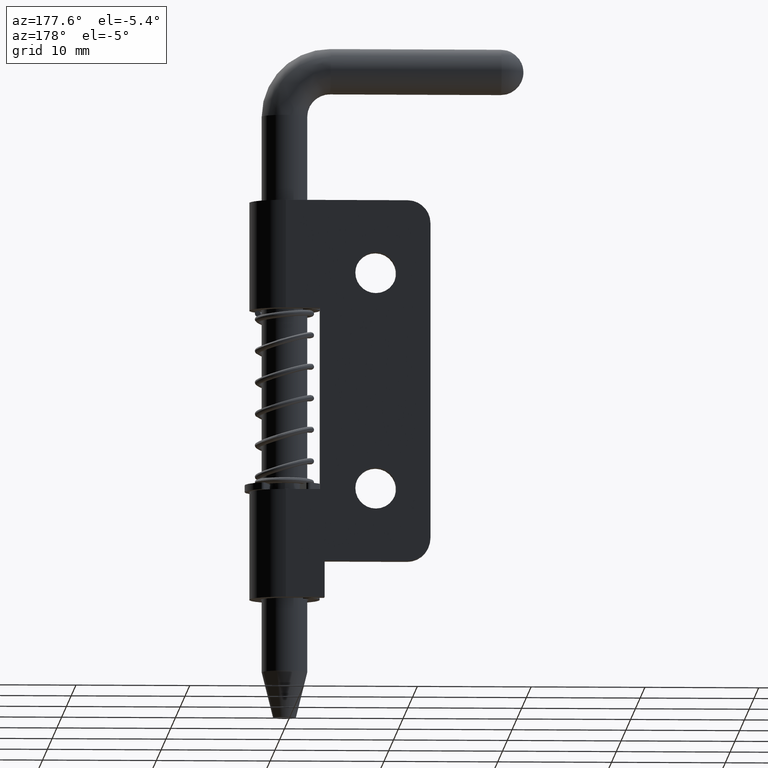
[diagram: clean part render]
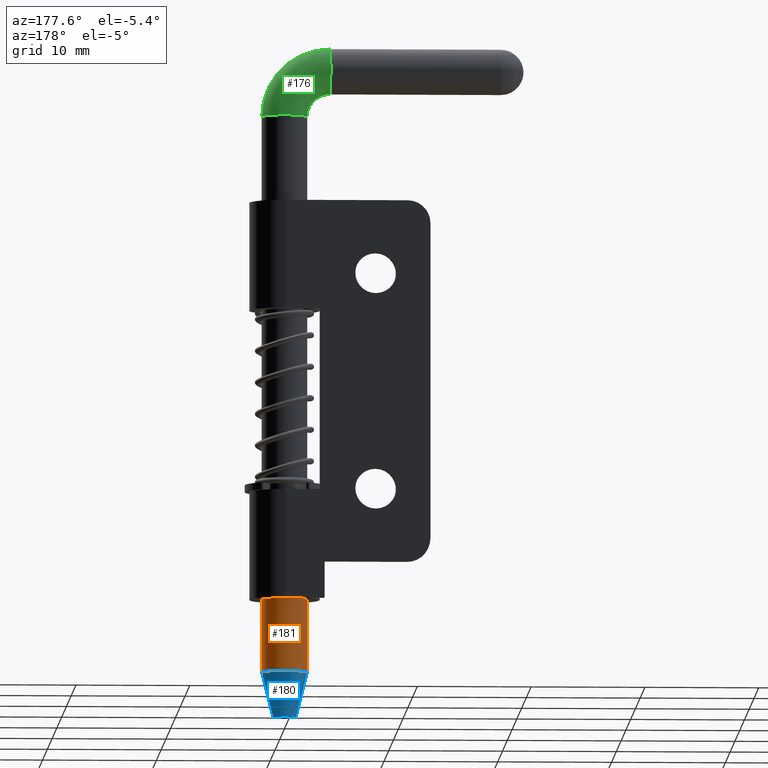
[diagram: same view with three faces highlighted in distinct colors, each labeled with its STEP entity id]
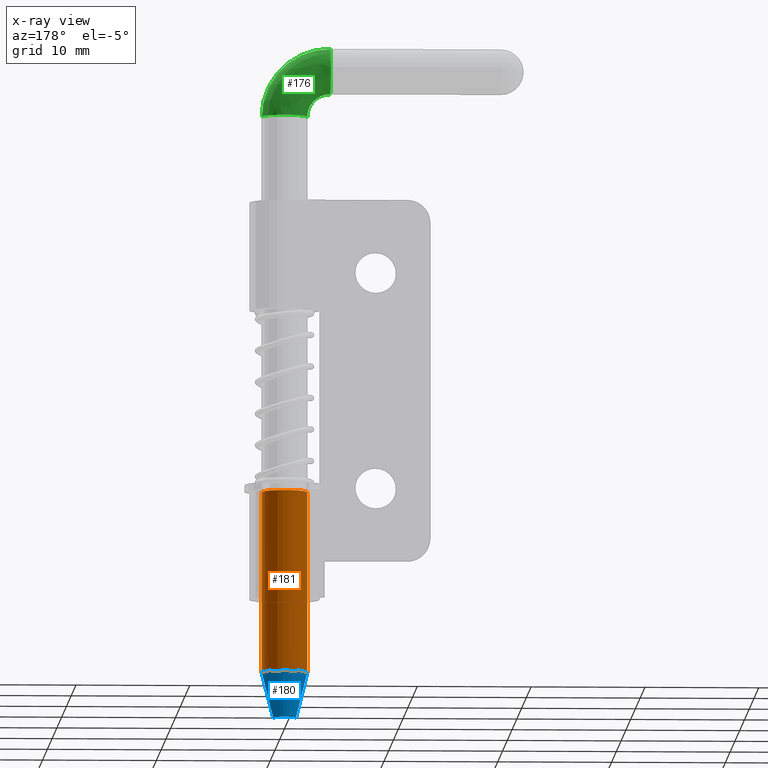
[diagram: x-ray of the same camera — body ghosted, the three highlighted faces saturated]
A machine part, auxiliary view with three faces highlighted in distinct colors.
The next image is the same camera in x-ray (body ghosted, the three faces saturated) — at least one of them is partly hidden behind the body in this view.
Their STEP definitions:

[orange] entity #181 — the highlighted cylindrical surface (edge-blend (fillet) strip) has radius 2 mm, axis along (0, 0, 1).
#181=ADVANCED_FACE('',(#559),#558,.T.);
#558=CYLINDRICAL_SURFACE('',#1350,2.00000000000E+00);
#559=FACE_OUTER_BOUND('',#1351,.T.);
#1347=CARTESIAN_POINT('',(0.00000000000E+00,0.00000000000E+00,0.00000000000E+00));
#1348=DIRECTION('',(0.00000000000E+00,-0.00000000000E+00,1.00000000000E+00));
#1349=DIRECTION('',(1.00000000000E+00,0.00000000000E+00,0.00000000000E+00));
#1350=AXIS2_PLACEMENT_3D('',#1347,#1348,#1349);
#1351=EDGE_LOOP('',(#3275,#3276,#3277,#3278,#3279,#3280));
#3275=ORIENTED_EDGE('',*,*,#3584,.T.);
#3276=ORIENTED_EDGE('',*,*,#3617,.T.);
#3277=ORIENTED_EDGE('',*,*,#3594,.T.);
#3278=ORIENTED_EDGE('',*,*,#3638,.F.);
#3279=ORIENTED_EDGE('',*,*,#3637,.F.);
#3280=ORIENTED_EDGE('',*,*,#3639,.T.);
#3584=EDGE_CURVE('',#3769,#4038,#4039,.T.);
#3594=EDGE_CURVE('',#4106,#3859,#4107,.T.);
#3617=EDGE_CURVE('',#4038,#4106,#4251,.T.);
#3637=EDGE_CURVE('',#4360,#4359,#4379,.T.);
#3638=EDGE_CURVE('',#4359,#3859,#4385,.T.);
#3639=EDGE_CURVE('',#4360,#3769,#4391,.T.);
#3769=VERTEX_POINT('',#5245);
#3859=VERTEX_POINT('',#5300);
#4038=VERTEX_POINT('',#5421);
#4039=CIRCLE('',#5425,2.00000000000E+00);
#4106=VERTEX_POINT('',#5466);
#4107=CIRCLE('',#5470,2.00000000000E+00);
#4251=CIRCLE('',#5550,2.00000000000E+00);
#4359=VERTEX_POINT('',#5609);
#4360=VERTEX_POINT('',#5610);
#4379=CIRCLE('',#5622,2.00000000000E+00);
#4385=(BOUNDED_CURVE() B_SPLINE_CURVE(1,(#5623,#5624),.UNSPECIFIED.,.F.,.F.) B_SPLINE_CURVE_WITH_KNOTS((2,2),(8.33333328360E-02,9.16666665505E-01),.UNSPECIFIED.) CURVE() GEOMETRIC_REPRESENTATION_ITEM() RATIONAL_B_SPLINE_CURVE((1.00000000000E+00,1.00000000000E+00)) REPRESENTATION_ITEM('') );
#4391=(BOUNDED_CURVE() B_SPLINE_CURVE(1,(#5625,#5626),.UNSPECIFIED.,.F.,.F.) B_SPLINE_CURVE_WITH_KNOTS((2,2),(8.33333333333E-02,9.16666666667E-01),.UNSPECIFIED.) CURVE() GEOMETRIC_REPRESENTATION_ITEM() RATIONAL_B_SPLINE_CURVE((7.50000000000E-01,7.50000000000E-01)) REPRESENTATION_ITEM('') );
#5245=CARTESIAN_POINT('',(-2.00000000000E+00,0.00000000000E+00,-3.31000000000E+01));
#5300=CARTESIAN_POINT('',(2.00000000000E+00,0.00000000000E+00,-3.31000000000E+01));
#5421=CARTESIAN_POINT('',(-1.46446214531E+00,1.36211255958E+00,-3.31000000000E+01));
#5422=CARTESIAN_POINT('',(0.00000000000E+00,0.00000000000E+00,-3.31000000000E+01));
#5423=DIRECTION('',(-0.00000000000E+00,0.00000000000E+00,-1.00000000000E+00));
#5424=DIRECTION('',(1.00000000000E+00,-0.00000000000E+00,-0.00000000000E+00));
#5425=AXIS2_PLACEMENT_3D('',#5422,#5423,#5424);
#5466=CARTESIAN_POINT('',(1.46446214531E+00,1.36211255958E+00,-3.31000000000E+01));
#5467=CARTESIAN_POINT('',(0.00000000000E+00,0.00000000000E+00,-3.31000000000E+01));
#5468=DIRECTION('',(-0.00000000000E+00,0.00000000000E+00,-1.00000000000E+00));
#5469=DIRECTION('',(1.00000000000E+00,-0.00000000000E+00,-0.00000000000E+00));
#5470=AXIS2_PLACEMENT_3D('',#5467,#5468,#5469);
#5547=CARTESIAN_POINT('',(0.00000000000E+00,0.00000000000E+00,-3.31000000000E+01));
#5548=DIRECTION('',(-0.00000000000E+00,0.00000000000E+00,-1.00000000000E+00));
#5549=DIRECTION('',(1.00000000000E+00,-0.00000000000E+00,-0.00000000000E+00));
#5550=AXIS2_PLACEMENT_3D('',#5547,#5548,#5549);
#5609=CARTESIAN_POINT('',(2.00000000000E+00,2.22044604925E-16,-4.89999999999E+01));
#5610=CARTESIAN_POINT('',(-2.00000000000E+00,0.00000000000E+00,-4.89999999999E+01));
#5619=CARTESIAN_POINT('',(0.00000000000E+00,0.00000000000E+00,-4.89999999999E+01));
#5620=DIRECTION('',(-0.00000000000E+00,0.00000000000E+00,-1.00000000000E+00));
#5621=DIRECTION('',(-1.00000000000E+00,-1.22460635382E-16,0.00000000000E+00));
#5622=AXIS2_PLACEMENT_3D('',#5619,#5620,#5621);
#5623=CARTESIAN_POINT('',(2.00000000000E+00,0.00000000000E+00,-4.90000000094E+01));
#5624=CARTESIAN_POINT('',(2.00000000000E+00,0.00000000000E+00,-3.31000000222E+01));
#5625=CARTESIAN_POINT('',(-2.00000000000E+00,-7.40148683083E-17,-4.89999999999E+01));
#5626=CARTESIAN_POINT('',(-2.00000000000E+00,-7.40148683083E-17,-3.31000000000E+01));

[blue] entity #180 — the highlighted face is a freeform B-spline surface patch.
#180=ADVANCED_FACE('',(#549),#548,.T.);
#548=( BOUNDED_SURFACE() B_SPLINE_SURFACE( 2,1,((#1336,#1337),(#1338,#1339),(#1340,#1341),(#1342,#1343),(#1344,#1345)), .UNSPECIFIED.,.F.,.F.,.F.) B_SPLINE_SURFACE_WITH_KNOTS((3,2,3),(2,2),(0.00000000000E+00,5.00000000000E-01,1.00000000000E+00),(0.00000000000E+00,1.00000000000E+00), .UNSPECIFIED. ) GEOMETRIC_REPRESENTATION_ITEM() RATIONAL_B_SPLINE_SURFACE(((1.00000000000E+00,1.00000000000E+00),(7.07106781187E-01,7.07106781187E-01),(1.00000000000E+00,1.00000000000E+00),(7.07106781187E-01,7.07106781187E-01),(1.00000000000E+00,1.00000000000E+00))) REPRESENTATION_ITEM('') SURFACE() );
#549=FACE_OUTER_BOUND('',#1346,.T.);
#1336=CARTESIAN_POINT('',(1.00000000000E+00,5.66553889765E-16,-5.29999999999E+01));
#1337=CARTESIAN_POINT('',(2.00000000000E+00,1.13310777953E-15,-4.89999999999E+01));
#1338=CARTESIAN_POINT('',(1.00000000000E+00,1.00000000000E+00,-5.29999999999E+01));
#1339=CARTESIAN_POINT('',(2.00000000000E+00,2.00000000000E+00,-4.89999999999E+01));
#1340=CARTESIAN_POINT('',(-5.05321549807E-16,1.00000000000E+00,-5.29999999999E+01));
#1341=CARTESIAN_POINT('',(-1.01064309961E-15,2.00000000000E+00,-4.89999999999E+01));
#1342=CARTESIAN_POINT('',(-1.00000000000E+00,1.00000000000E+00,-5.29999999999E+01));
#1343=CARTESIAN_POINT('',(-2.00000000000E+00,2.00000000000E+00,-4.89999999999E+01));
#1344=CARTESIAN_POINT('',(-1.00000000000E+00,-4.44089209850E-16,-5.29999999999E+01));
#1345=CARTESIAN_POINT('',(-2.00000000000E+00,-8.88178419700E-16,-4.89999999999E+01));
#1346=EDGE_LOOP('',(#3271,#3272,#3273,#3274));
#3271=ORIENTED_EDGE('',*,*,#3566,.F.);
#3272=ORIENTED_EDGE('',*,*,#3635,.T.);
#3273=ORIENTED_EDGE('',*,*,#3637,.T.);
#3274=ORIENTED_EDGE('',*,*,#3636,.F.);
#3566=EDGE_CURVE('',#3914,#3915,#3916,.T.);
#3635=EDGE_CURVE('',#3914,#4360,#4367,.T.);
#3636=EDGE_CURVE('',#3915,#4359,#4373,.T.);
#3637=EDGE_CURVE('',#4360,#4359,#4379,.T.);
#3914=VERTEX_POINT('',#5338);
#3915=VERTEX_POINT('',#5339);
#3916=CIRCLE('',#5343,1.00000000000E+00);
#4359=VERTEX_POINT('',#5609);
#4360=VERTEX_POINT('',#5610);
#4367=(BOUNDED_CURVE() B_SPLINE_CURVE(1,(#5615,#5616),.UNSPECIFIED.,.F.,.F.) B_SPLINE_CURVE_WITH_KNOTS((2,2),(0.00000000000E+00,1.00000000000E+00),.UNSPECIFIED.) CURVE() GEOMETRIC_REPRESENTATION_ITEM() RATIONAL_B_SPLINE_CURVE((1.00000000000E+00,1.00000000000E+00)) REPRESENTATION_ITEM('') );
#4373=(BOUNDED_CURVE() B_SPLINE_CURVE(1,(#5617,#5618),.UNSPECIFIED.,.F.,.F.) B_SPLINE_CURVE_WITH_KNOTS((2,2),(0.00000000000E+00,1.00000000000E+00),.UNSPECIFIED.) CURVE() GEOMETRIC_REPRESENTATION_ITEM() RATIONAL_B_SPLINE_CURVE((7.50000000000E-01,7.50000000000E-01)) REPRESENTATION_ITEM('') );
#4379=CIRCLE('',#5622,2.00000000000E+00);
#5338=CARTESIAN_POINT('',(-1.00000000000E+00,0.00000000000E+00,-5.29999999999E+01));
#5339=CARTESIAN_POINT('',(1.00000000000E+00,1.11022302463E-16,-5.29999999999E+01));
#5340=CARTESIAN_POINT('',(0.00000000000E+00,0.00000000000E+00,-5.29999999999E+01));
#5341=DIRECTION('',(-0.00000000000E+00,0.00000000000E+00,-1.00000000000E+00));
#5342=DIRECTION('',(-1.00000000000E+00,-1.22460635382E-16,0.00000000000E+00));
#5343=AXIS2_PLACEMENT_3D('',#5340,#5341,#5342);
#5609=CARTESIAN_POINT('',(2.00000000000E+00,2.22044604925E-16,-4.89999999999E+01));
#5610=CARTESIAN_POINT('',(-2.00000000000E+00,0.00000000000E+00,-4.89999999999E+01));
#5615=CARTESIAN_POINT('',(-1.00000000000E+00,-2.44921270765E-16,-5.29999999999E+01));
#5616=CARTESIAN_POINT('',(-2.00000000000E+00,-4.89842541529E-16,-4.89999999999E+01));
#5617=CARTESIAN_POINT('',(1.00000000000E+00,2.59052039079E-16,-5.29999999999E+01));
#5618=CARTESIAN_POINT('',(2.00000000000E+00,5.18104078158E-16,-4.89999999999E+01));
#5619=CARTESIAN_POINT('',(0.00000000000E+00,0.00000000000E+00,-4.89999999999E+01));
#5620=DIRECTION('',(-0.00000000000E+00,0.00000000000E+00,-1.00000000000E+00));
#5621=DIRECTION('',(-1.00000000000E+00,-1.22460635382E-16,0.00000000000E+00));
#5622=AXIS2_PLACEMENT_3D('',#5619,#5620,#5621);

[green] entity #176 — the highlighted face is a freeform B-spline surface patch.
#176=ADVANCED_FACE('',(#509),#508,.T.);
#508=( BOUNDED_SURFACE() B_SPLINE_SURFACE( 2,2,((#1289,#1290,#1291,#1292,#1293),(#1294,#1295,#1296,#1297,#1298),(#1299,#1300,#1301,#1302,#1303),(#1304,#1305,#1306,#1307,#1308),(#1309,#1310,#1311,#1312,#1313)), .UNSPECIFIED.,.F.,.F.,.F.) B_SPLINE_SURFACE_WITH_KNOTS((3,2,3),(3,2,3),(0.00000000000E+00,1.57079632679E+00,3.14159265359E+00),(1.56737575295E+00,1.57079632679E+00,3.14159265359E+00), .UNSPECIFIED. ) GEOMETRIC_REPRESENTATION_ITEM() RATIONAL_B_SPLINE_SURFACE(((9.98727166337E-01,9.99362194279E-01,1.00000000000E+00,7.07106781187E-01,1.00000000000E+00),(7.06206751872E-01,7.06655784436E-01,7.07106781187E-01,5.00000000000E-01,7.07106781187E-01),(9.98727166337E-01,9.99362194279E-01,1.00000000000E+00,7.07106781187E-01,1.00000000000E+00),(7.06206751872E-01,7.06655784436E-01,7.07106781187E-01,5.00000000000E-01,7.07106781187E-01),(9.98727166337E-01,9.99362194279E-01,1.00000000000E+00,7.07106781187E-01,1.00000000000E+00))) REPRESENTATION_ITEM('') SURFACE() );
#509=FACE_OUTER_BOUND('',#1314,.T.);
#1289=CARTESIAN_POINT('',(1.99997151196E+00,0.00000000000E+00,-1.84893393908E-02));
#1290=CARTESIAN_POINT('',(2.00000000000E+00,0.00000000000E+00,-9.24469164233E-03));
#1291=CARTESIAN_POINT('',(2.00000000000E+00,0.00000000000E+00,8.88178419700E-16));
#1292=CARTESIAN_POINT('',(2.00000000000E+00,0.00000000000E+00,6.00000000000E+00));
#1293=CARTESIAN_POINT('',(-4.00000000000E+00,0.00000000000E+00,6.00000000000E+00));
#1294=CARTESIAN_POINT('',(1.99997151196E+00,2.00000000000E+00,-1.84893393908E-02));
#1295=CARTESIAN_POINT('',(2.00000000000E+00,2.00000000000E+00,-9.24469164233E-03));
#1296=CARTESIAN_POINT('',(2.00000000000E+00,2.00000000000E+00,8.88178419700E-16));
#1297=CARTESIAN_POINT('',(2.00000000000E+00,2.00000000000E+00,6.00000000000E+00));
#1298=CARTESIAN_POINT('',(-4.00000000000E+00,2.00000000000E+00,6.00000000000E+00));
#1299=CARTESIAN_POINT('',(-1.89920268154E-05,2.00000000000E+00,-1.23262262605E-02));
#1300=CARTESIAN_POINT('',(6.84244634458E-19,2.00000000000E+00,-6.16312776155E-03));
#1301=CARTESIAN_POINT('',(0.00000000000E+00,2.00000000000E+00,4.44089209850E-16));
#1302=CARTESIAN_POINT('',(-4.44089209850E-16,2.00000000000E+00,4.00000000000E+00));
#1303=CARTESIAN_POINT('',(-4.00000000000E+00,2.00000000000E+00,4.00000000000E+00));
#1304=CARTESIAN_POINT('',(-2.00000949601E+00,2.00000000000E+00,-6.16311313027E-03));
#1305=CARTESIAN_POINT('',(-2.00000000000E+00,2.00000000000E+00,-3.08156388078E-03));
#1306=CARTESIAN_POINT('',(-2.00000000000E+00,2.00000000000E+00,0.00000000000E+00));
#1307=CARTESIAN_POINT('',(-2.00000000000E+00,2.00000000000E+00,2.00000000000E+00));
#1308=CARTESIAN_POINT('',(-4.00000000000E+00,2.00000000000E+00,2.00000000000E+00));
#1309=CARTESIAN_POINT('',(-2.00000949601E+00,2.44921270764E-16,-6.16311313027E-03));
#1310=CARTESIAN_POINT('',(-2.00000000000E+00,2.44921270764E-16,-3.08156388078E-03));
#1311=CARTESIAN_POINT('',(-2.00000000000E+00,2.44921270764E-16,0.00000000000E+00));
#1312=CARTESIAN_POINT('',(-2.00000000000E+00,2.44921270764E-16,2.00000000000E+00));
#1313=CARTESIAN_POINT('',(-4.00000000000E+00,2.44921270764E-16,2.00000000000E+00));
#1314=EDGE_LOOP('',(#3255,#3256,#3257,#3258));
#3255=ORIENTED_EDGE('',*,*,#3622,.F.);
#3256=ORIENTED_EDGE('',*,*,#3627,.T.);
#3257=ORIENTED_EDGE('',*,*,#3629,.F.);
#3258=ORIENTED_EDGE('',*,*,#3628,.F.);
#3622=EDGE_CURVE('',#4281,#4282,#4283,.T.);
#3627=EDGE_CURVE('',#4281,#4307,#4315,.T.);
#3628=EDGE_CURVE('',#4282,#4308,#4321,.T.);
#3629=EDGE_CURVE('',#4308,#4307,#4327,.T.);
#4281=VERTEX_POINT('',#5563);
#4282=VERTEX_POINT('',#5564);
#4283=CIRCLE('',#5568,2.00000000000E+00);
#4307=VERTEX_POINT('',#5577);
#4308=VERTEX_POINT('',#5578);
#4315=(BOUNDED_CURVE() B_SPLINE_CURVE(2,(#5583,#5584,#5585),.UNSPECIFIED.,.F.,.F.) B_SPLINE_CURVE_WITH_KNOTS((3,3),(1.57079632679E+00,3.14159265359E+00),.UNSPECIFIED.) CURVE() GEOMETRIC_REPRESENTATION_ITEM() RATIONAL_B_SPLINE_CURVE((1.00000000000E+00,7.07106781187E-01,1.00000000000E+00)) REPRESENTATION_ITEM('') );
#4321=(BOUNDED_CURVE() B_SPLINE_CURVE(3,(#5586,#5587,#5588,#5589,#5590),.UNSPECIFIED.,.F.,.F.) B_SPLINE_CURVE_WITH_KNOTS((4,1,4),(1.57079632678E+00,2.35619449018E+00,3.14159265359E+00),.UNSPECIFIED.) CURVE() GEOMETRIC_REPRESENTATION_ITEM() RATIONAL_B_SPLINE_CURVE((1.00000000000E+00,1.00000000000E+00,1.00000000000E+00,1.00000000000E+00,1.00000000000E+00)) REPRESENTATION_ITEM('') );
#4327=CIRCLE('',#5594,2.00000000011E+00);
#5563=CARTESIAN_POINT('',(-2.00000000000E+00,-2.22044604925E-16,0.00000000000E+00));
#5564=CARTESIAN_POINT('',(2.00000000000E+00,0.00000000000E+00,0.00000000000E+00));
#5565=CARTESIAN_POINT('',(0.00000000000E+00,0.00000000000E+00,0.00000000000E+00));
#5566=DIRECTION('',(0.00000000000E+00,0.00000000000E+00,-1.00000000000E+00));
#5567=DIRECTION('',(1.00000000000E+00,1.22460635382E-16,0.00000000000E+00));
#5568=AXIS2_PLACEMENT_3D('',#5565,#5566,#5567);
#5577=CARTESIAN_POINT('',(-4.00000000000E+00,2.22044604925E-16,1.99999999989E+00));
#5578=CARTESIAN_POINT('',(-4.00000000000E+00,0.00000000000E+00,6.00000000011E+00));
#5583=CARTESIAN_POINT('',(-2.00000000000E+00,-2.44921270764E-16,0.00000000000E+00));
#5584=CARTESIAN_POINT('',(-2.00000000000E+00,-2.44921270764E-16,2.00000000000E+00));
#5585=CARTESIAN_POINT('',(-4.00000000000E+00,-2.44921270764E-16,2.00000000000E+00));
#5586=CARTESIAN_POINT('',(2.00000000000E+00,0.00000000000E+00,-9.90138525439E-11));
#5587=CARTESIAN_POINT('',(2.01457790693E+00,0.00000000000E+00,1.56386587517E+00));
#5588=CARTESIAN_POINT('',(6.96059483210E-01,0.00000000000E+00,4.69605948314E+00));
#5589=CARTESIAN_POINT('',(-2.43613412474E+00,0.00000000000E+00,6.01457790690E+00));
#5590=CARTESIAN_POINT('',(-4.00000000001E+00,0.00000000000E+00,6.00000000000E+00));
#5591=CARTESIAN_POINT('',(-4.00000000000E+00,0.00000000000E+00,4.00000000000E+00));
#5592=DIRECTION('',(-1.00000000000E+00,0.00000000000E+00,0.00000000000E+00));
#5593=DIRECTION('',(0.00000000000E+00,-1.22460635382E-16,1.00000000000E+00));
#5594=AXIS2_PLACEMENT_3D('',#5591,#5592,#5593);